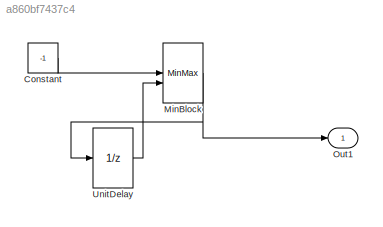
MODEL slx_a860bf7437c4
KIND model
CONFIG AbsTol = auto
CONFIG EnableMultiTasking = off
CONFIG FixedStep = auto
CONFIG MaxStep = auto
CONFIG MinStep = auto
CONFIG RelTol = 1e-3
CONFIG SampleTimeConstraint = Unconstrained
CONFIG SolverName = VariableStepAuto
CONFIG StartTime = 0.0
CONFIG StopTime = 10.0
BLOCK [Constant] Constant
  Value = -1
BLOCK [MinMax] MinBlock
  Inputs = 2
BLOCK [Outport] Out1
BLOCK [UnitDelay] UnitDelay
  HasFrameUpgradeWarning = on
  InitialCondition = inf
  SampleTime = -1
LINE Constant:1 -> MinBlock:1
NET MinBlock:1 -> Out1:1, UnitDelay:1
LINE UnitDelay:1 -> MinBlock:2
note: NET lines group one-source signal fan-out (src -> all destinations, sorted); 1:1 wires keep LINE
